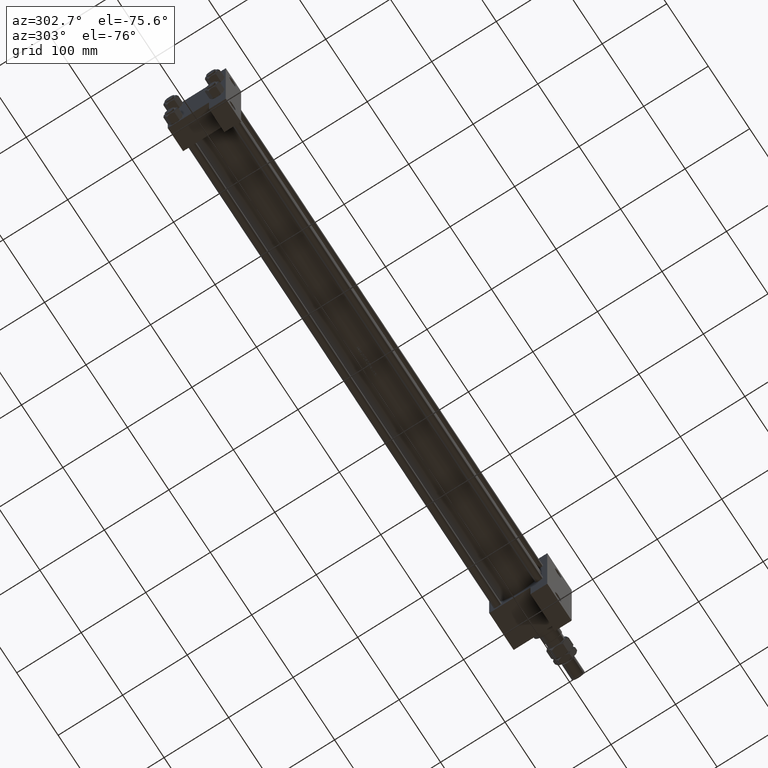
[diagram: clean part render]
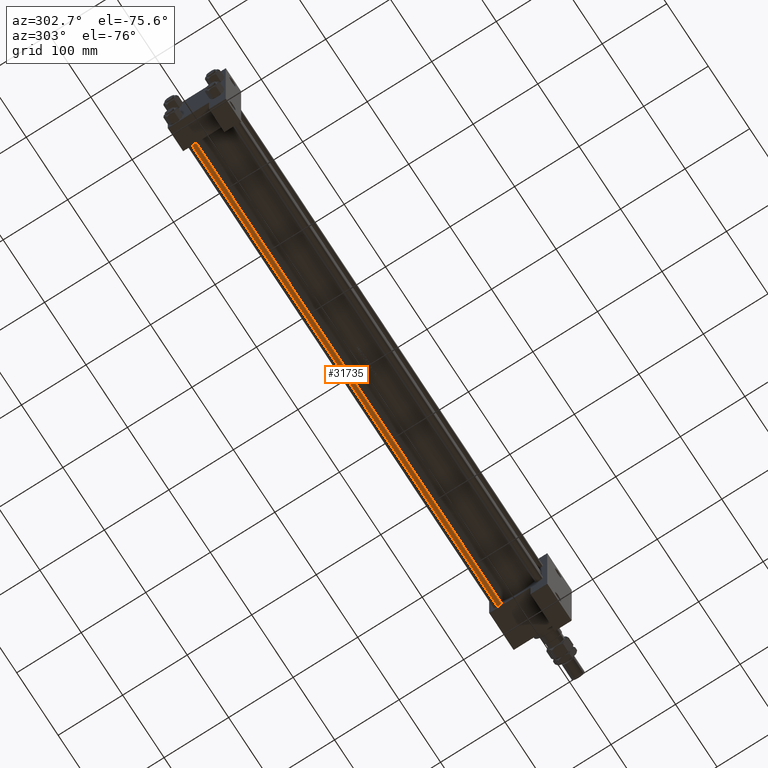
[diagram: same view with one face highlighted and labeled with its STEP entity id]
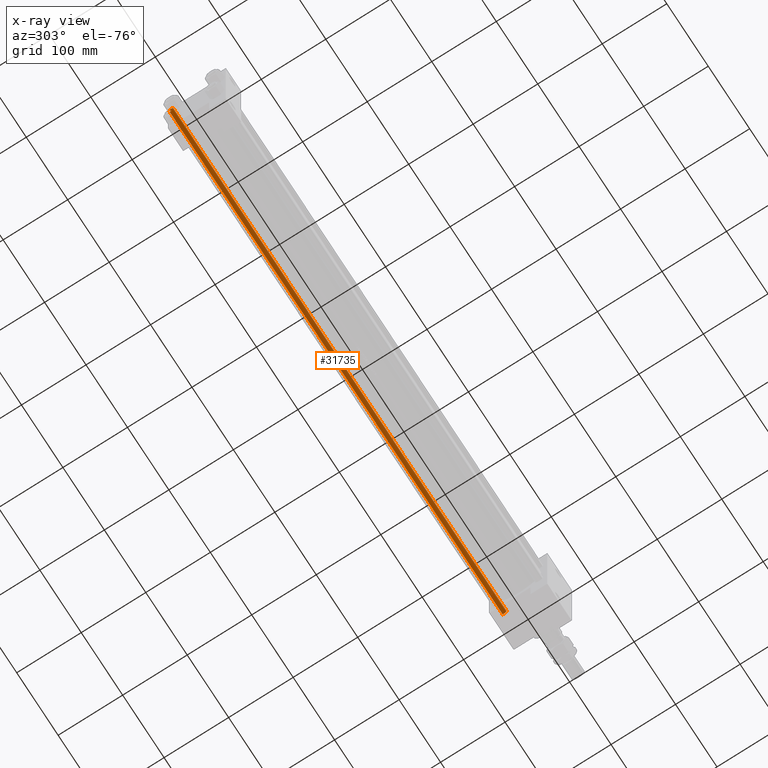
[diagram: x-ray of the same camera — body ghosted, the highlighted face saturated]
A machine part, auxiliary view. The second image highlights one B-rep face of the part: STEP entity #31735.
The next image is the same camera in x-ray: the body ghosted, the highlighted face saturated — about 0% of this face is hidden behind the body in this view.
In plain terms, the highlighted cylindrical surface (edge-blend (fillet) strip) has radius 6 mm, axis along (1, -0, -0).
Its self-contained STEP definition (entity closure, byte-faithful):
#243 = CARTESIAN_POINT ( 'NONE',  ( -6.000000000000000888, 0.000000000000000000, 804.5000000000002274 ) ) ;
#2027 = EDGE_CURVE ( 'NONE', #46826, #39538, #4436, .T. ) ;
#4436 = LINE ( 'NONE', #41119, #33877 ) ;
#5292 = VERTEX_POINT ( 'NONE', #8346 ) ;
#7296 = DIRECTION ( 'NONE',  ( 1.000000000000000000, 0.000000000000000000, 0.000000000000000000 ) ) ;
#8346 = CARTESIAN_POINT ( 'NONE',  ( -6.000000000000000888, 0.000000000000000000, 0.5000000000000559552 ) ) ;
#9506 = EDGE_LOOP ( 'NONE', ( #37271, #43280, #14703, #36634 ) ) ;
#9963 = CARTESIAN_POINT ( 'NONE',  ( 6.000000000000000888, 7.347880794884120722E-16, 0.5000000000000559552 ) ) ;
#9994 = EDGE_CURVE ( 'NONE', #11426, #5292, #13007, .T. ) ;
#11426 = VERTEX_POINT ( 'NONE', #243 ) ;
#11736 = CARTESIAN_POINT ( 'NONE',  ( 0.000000000000000000, 0.000000000000000000, 804.5000000000002274 ) ) ;
#11904 = DIRECTION ( 'NONE',  ( -0.000000000000000000, -0.000000000000000000, -1.000000000000000000 ) ) ;
#13007 = LINE ( 'NONE', #36402, #41147 ) ;
#13596 = DIRECTION ( 'NONE',  ( -1.000000000000000000, 0.000000000000000000, 0.000000000000000000 ) ) ;
#13843 = EDGE_CURVE ( 'NONE', #5292, #39538, #49236, .T. ) ;
#13921 = DIRECTION ( 'NONE',  ( 1.000000000000000000, 0.000000000000000000, 0.000000000000000000 ) ) ;
#14423 = DIRECTION ( 'NONE',  ( -0.000000000000000000, -0.000000000000000000, 1.000000000000000000 ) ) ;
#14703 = ORIENTED_EDGE ( 'NONE', *, *, #9994, .T. ) ;
#17346 = FACE_OUTER_BOUND ( 'NONE', #9506, .T. ) ;
#19245 = DIRECTION ( 'NONE',  ( 0.000000000000000000, 0.000000000000000000, -1.000000000000000000 ) ) ;
#22607 = CARTESIAN_POINT ( 'NONE',  ( 6.000000000000000888, 7.347880794884120722E-16, 804.5000000000002274 ) ) ;
#28608 = AXIS2_PLACEMENT_3D ( 'NONE', #11736, #19245, #7296 ) ;
#31735 = ADVANCED_FACE ( 'NONE', ( #17346 ), #47671, .T. ) ;
#32324 = AXIS2_PLACEMENT_3D ( 'NONE', #32756, #36743, #13596 ) ;
#32756 = CARTESIAN_POINT ( 'NONE',  ( 0.000000000000000000, 0.000000000000000000, 805.0000000000000000 ) ) ;
#33877 = VECTOR ( 'NONE', #11904, 1000.000000000000000 ) ;
#34179 = CIRCLE ( 'NONE', #28608, 6.000000000000000888 ) ;
#36402 = CARTESIAN_POINT ( 'NONE',  ( -6.000000000000000888, 0.000000000000000000, 805.0000000000000000 ) ) ;
#36634 = ORIENTED_EDGE ( 'NONE', *, *, #13843, .T. ) ;
#36743 = DIRECTION ( 'NONE',  ( -0.000000000000000000, -0.000000000000000000, -1.000000000000000000 ) ) ;
#37271 = ORIENTED_EDGE ( 'NONE', *, *, #2027, .F. ) ;
#38881 = AXIS2_PLACEMENT_3D ( 'NONE', #44776, #14423, #13921 ) ;
#39538 = VERTEX_POINT ( 'NONE', #9963 ) ;
#41119 = CARTESIAN_POINT ( 'NONE',  ( 6.000000000000000888, 7.347880794884120722E-16, 805.0000000000000000 ) ) ;
#41147 = VECTOR ( 'NONE', #43868, 1000.000000000000000 ) ;
#42345 = EDGE_CURVE ( 'NONE', #46826, #11426, #34179, .T. ) ;
#43280 = ORIENTED_EDGE ( 'NONE', *, *, #42345, .T. ) ;
#43868 = DIRECTION ( 'NONE',  ( -0.000000000000000000, -0.000000000000000000, -1.000000000000000000 ) ) ;
#44776 = CARTESIAN_POINT ( 'NONE',  ( 0.000000000000000000, 0.000000000000000000, 0.5000000000000559552 ) ) ;
#46826 = VERTEX_POINT ( 'NONE', #22607 ) ;
#47671 = CYLINDRICAL_SURFACE ( 'NONE', #32324, 6.000000000000000888 ) ;
#49236 = CIRCLE ( 'NONE', #38881, 6.000000000000000888 ) ;